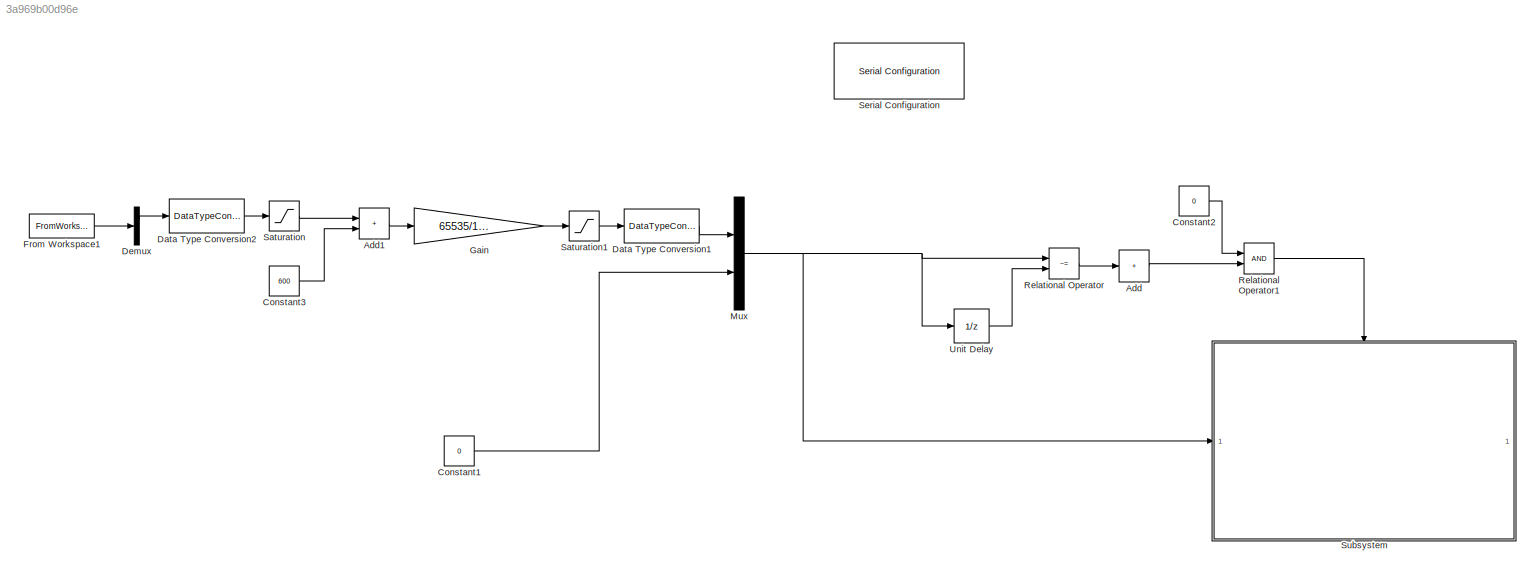
MODEL slx_3a969b00d96e
KIND model
CONFIG AbsTol = auto
CONFIG EnableMultiTasking = on
CONFIG FixedStep = auto
CONFIG InitFcn = Motor_data_IM_R;
CONFIG MaxStep = auto
CONFIG MinStep = auto
CONFIG RelTol = 1e-3
CONFIG SampleTimeConstraint = Unconstrained
CONFIG SolverName = FixedStepDiscrete
CONFIG StartTime = 0.0
CONFIG StopTime = Inf
BLOCK [Sum] Add
  IconShape = rectangular
  Inputs = +
BLOCK [Sum] Add1
  IconShape = rectangular
  OutDataTypeStr = single
BLOCK [Constant] Constant1
  OutDataTypeStr = uint16
  Value = 0
BLOCK [Constant] Constant2
  OutDataTypeStr = uint16
  Value = 0
BLOCK [Constant] Constant3
  OutDataTypeStr = single
  Value = 600
BLOCK [DataTypeConversion] Data Type Conversion1
  OutDataTypeStr = uint16
  RndMeth = Floor
  SaturateOnIntegerOverflow = off
BLOCK [DataTypeConversion] Data Type Conversion2
  OutDataTypeStr = single
  RndMeth = Floor
  SaturateOnIntegerOverflow = off
BLOCK [Demux] Demux
  Outputs = 2
BLOCK [FromWorkspace] From Workspace1
  Interpolate = off
  OutDataTypeStr = single
  OutputAfterFinalValue = Holding final value
  VariableName = ref_ts
BLOCK [Gain] Gain
  Gain = 65535/1200
  OutDataTypeStr = single
  ParamDataTypeStr = single
BLOCK [Mux] Mux
  DisplayOption = bar
  Inputs = 2
BLOCK [RelationalOperator] Relational Operator
  InputSameDT = off
  Operator = ~=
  OutDataTypeStr = fixdt(0,16)
  RndMeth = Simplest
BLOCK [RelationalOperator] Relational Operator1
  InputSameDT = off
  OutDataTypeStr = fixdt(0,16)
  RndMeth = Simplest
BLOCK [Saturate] Saturation
  LowerLimit = -600
  OutDataTypeStr = single
  UpperLimit = 600
BLOCK [Saturate] Saturation1
  LowerLimit = 0
  OutDataTypeStr = single
  UpperLimit = 65535
BLOCK [Reference] Serial Configuration  REF=instrumentseriallib/Serial Configuration
  LibrarySourceBlock = c2000lib/Host Communication/Serial Configuration
  Priority = -200000
  SourceBlock = instrumentseriallib/Serial Configuration
  SourceType = system.SerialConfiguration
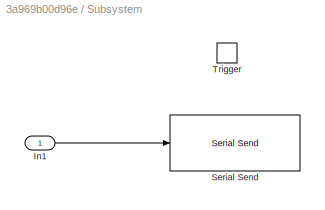
BLOCK [SubSystem] Subsystem
BLOCK [Inport] Subsystem/In1
BLOCK [Reference] Subsystem/Serial Send  REF=instrumentseriallib/Serial Send
  LibrarySourceBlock = c2000lib/Host Communication/Serial Send
  Priority = 1
  SourceBlock = instrumentseriallib/Serial Send
  SourceType = system.SerialSend
BLOCK [TriggerPort] Subsystem/Trigger
  PortDimensions = 1
  StatesWhenEnabling = held
  VariantControl = (inherit)
BLOCK [UnitDelay] Unit Delay
  HasFrameUpgradeWarning = on
  SampleTime = -1
LINE Add1:1 -> Gain:1
LINE Add:1 -> Relational Operator1:2
LINE Constant1:1 -> Mux:2
LINE Constant2:1 -> Relational Operator1:1
LINE Constant3:1 -> Add1:2
LINE Data Type Conversion1:1 -> Mux:1
LINE Data Type Conversion2:1 -> Saturation:1
LINE Demux:1 -> Data Type Conversion2:1
LINE From Workspace1:1 -> Demux:1
LINE Gain:1 -> Saturation1:1
NET Mux:1 -> Relational Operator:1, Subsystem:1, Unit Delay:1
LINE Relational Operator1:1 -> Subsystem:trigger
LINE Relational Operator:1 -> Add:1
LINE Saturation1:1 -> Data Type Conversion1:1
LINE Saturation:1 -> Add1:1
LINE Subsystem/In1:1 -> Subsystem/Serial Send:1
LINE Unit Delay:1 -> Relational Operator:2
note: NET lines group one-source signal fan-out (src -> all destinations, sorted); 1:1 wires keep LINE
